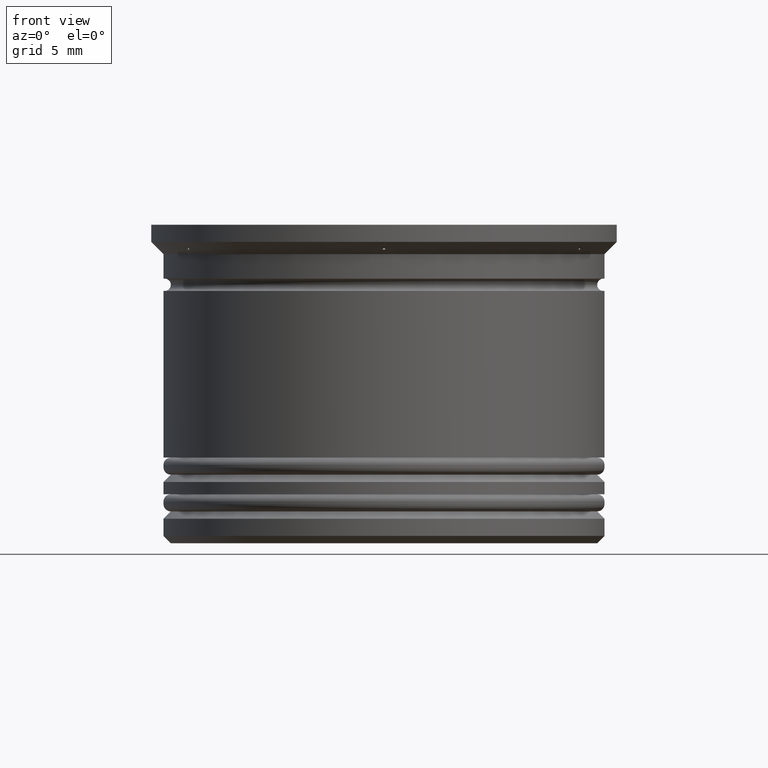
[diagram: clean part render]
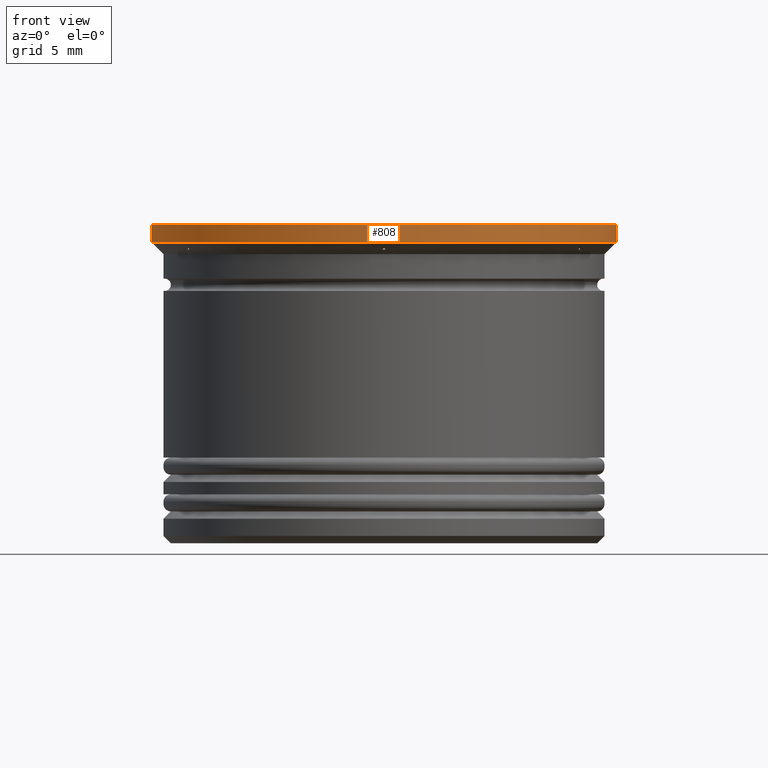
[diagram: same view with one face highlighted and labeled with its STEP entity id]
A machine part, front view. The second image highlights one B-rep face of the part: STEP entity #808.
In plain terms, the highlighted cylindrical surface (partial cylindrical patch) has radius 9.5 mm, axis along (-0, -0, 1).
Its self-contained STEP definition (entity closure, byte-faithful):
#116 = VERTEX_POINT ( 'NONE', #211 ) ;
#147 = VERTEX_POINT ( 'NONE', #564 ) ;
#159 = CARTESIAN_POINT ( 'NONE',  ( 9.500000000000000000, 0.000000000000000000, 0.000000000000000000 ) ) ;
#211 = CARTESIAN_POINT ( 'NONE',  ( 9.500000000000000000, 0.000000000000000000, 0.000000000000000000 ) ) ;
#341 = EDGE_CURVE ( 'NONE', #757, #147, #868, .T. ) ;
#350 = VECTOR ( 'NONE', #1576, 1000.000000000000000 ) ;
#372 = FACE_OUTER_BOUND ( 'NONE', #863, .T. ) ;
#483 = DIRECTION ( 'NONE',  ( 1.000000000000000000, 0.000000000000000000, 0.000000000000000000 ) ) ;
#542 = DIRECTION ( 'NONE',  ( -0.000000000000000000, -0.000000000000000000, 1.000000000000000000 ) ) ;
#555 = AXIS2_PLACEMENT_3D ( 'NONE', #556, #1057, #1234 ) ;
#556 = CARTESIAN_POINT ( 'NONE',  ( 0.000000000000000000, 0.000000000000000000, 0.000000000000000000 ) ) ;
#564 = CARTESIAN_POINT ( 'NONE',  ( 9.500000000000000000, 0.000000000000000000, -0.6999999999999952927 ) ) ;
#567 = CYLINDRICAL_SURFACE ( 'NONE', #555, 9.500000000000000000 ) ;
#599 = ORIENTED_EDGE ( 'NONE', *, *, #1986, .T. ) ;
#745 = CARTESIAN_POINT ( 'NONE',  ( -9.500000000000000000, 1.163414459189985485E-15, 0.000000000000000000 ) ) ;
#757 = VERTEX_POINT ( 'NONE', #1357 ) ;
#783 = EDGE_CURVE ( 'NONE', #2168, #116, #1848, .T. ) ;
#808 = ADVANCED_FACE ( 'NONE', ( #372 ), #567, .T. ) ;
#863 = EDGE_LOOP ( 'NONE', ( #2031, #1381, #599, #1004 ) ) ;
#868 = CIRCLE ( 'NONE', #2163, 9.500000000000000000 ) ;
#971 = EDGE_CURVE ( 'NONE', #757, #2168, #1097, .T. ) ;
#1004 = ORIENTED_EDGE ( 'NONE', *, *, #783, .F. ) ;
#1057 = DIRECTION ( 'NONE',  ( -0.000000000000000000, -0.000000000000000000, 1.000000000000000000 ) ) ;
#1097 = LINE ( 'NONE', #1928, #350 ) ;
#1121 = DIRECTION ( 'NONE',  ( -0.000000000000000000, -0.000000000000000000, 1.000000000000000000 ) ) ;
#1164 = CARTESIAN_POINT ( 'NONE',  ( 0.000000000000000000, 0.000000000000000000, -0.6999999999999952927 ) ) ;
#1234 = DIRECTION ( 'NONE',  ( 1.000000000000000000, 0.000000000000000000, 0.000000000000000000 ) ) ;
#1357 = CARTESIAN_POINT ( 'NONE',  ( -9.500000000000000000, 1.163414459189985485E-15, -0.6999999999999952927 ) ) ;
#1381 = ORIENTED_EDGE ( 'NONE', *, *, #341, .T. ) ;
#1471 = CARTESIAN_POINT ( 'NONE',  ( 0.000000000000000000, 0.000000000000000000, 0.000000000000000000 ) ) ;
#1576 = DIRECTION ( 'NONE',  ( -0.000000000000000000, -0.000000000000000000, 1.000000000000000000 ) ) ;
#1595 = AXIS2_PLACEMENT_3D ( 'NONE', #1471, #2146, #483 ) ;
#1631 = DIRECTION ( 'NONE',  ( -1.000000000000000000, 0.000000000000000000, 0.000000000000000000 ) ) ;
#1680 = VECTOR ( 'NONE', #542, 1000.000000000000000 ) ;
#1711 = LINE ( 'NONE', #159, #1680 ) ;
#1848 = CIRCLE ( 'NONE', #1595, 9.500000000000000000 ) ;
#1928 = CARTESIAN_POINT ( 'NONE',  ( -9.500000000000000000, 1.163414459189985485E-15, 0.000000000000000000 ) ) ;
#1986 = EDGE_CURVE ( 'NONE', #147, #116, #1711, .T. ) ;
#2031 = ORIENTED_EDGE ( 'NONE', *, *, #971, .F. ) ;
#2146 = DIRECTION ( 'NONE',  ( -0.000000000000000000, -0.000000000000000000, 1.000000000000000000 ) ) ;
#2163 = AXIS2_PLACEMENT_3D ( 'NONE', #1164, #1121, #1631 ) ;
#2168 = VERTEX_POINT ( 'NONE', #745 ) ;